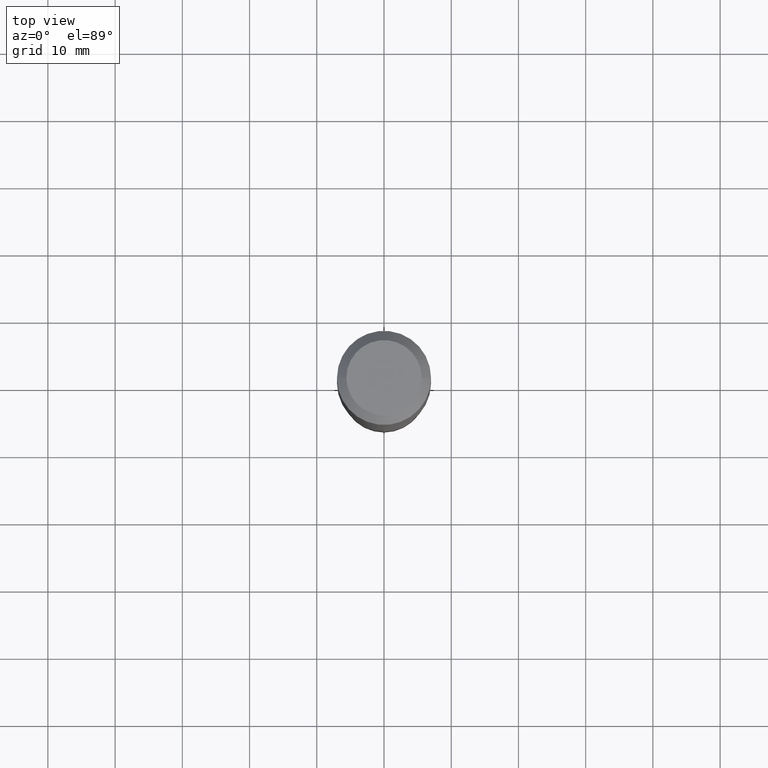
[diagram: clean part render]
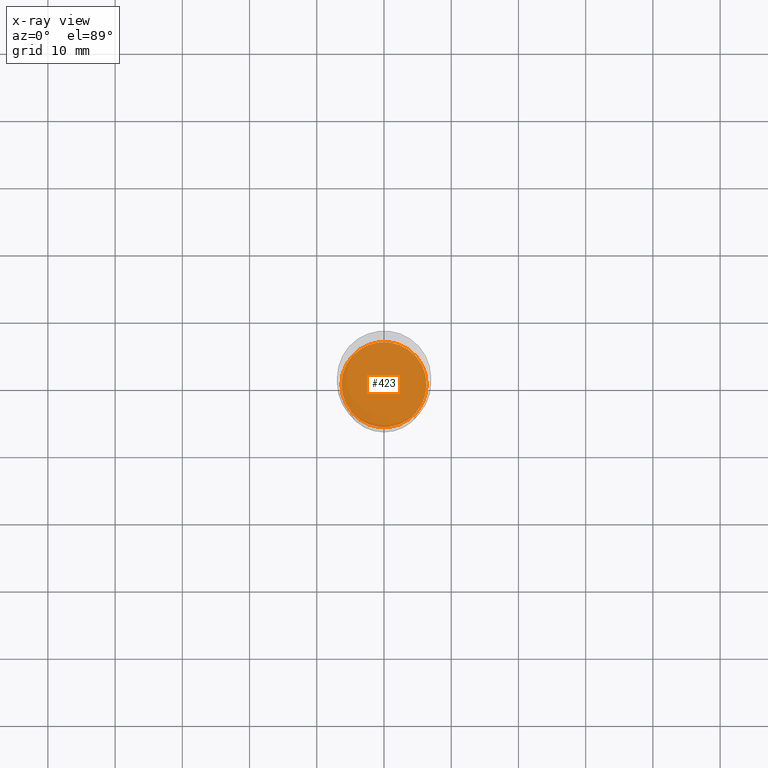
[diagram: x-ray — body ghosted, one internal face saturated and labeled with its STEP entity id]
A machine part, top view, then the same camera in x-ray: the body is ghosted and one INTERNAL B-rep face — a face not visible from any outside direction — is saturated and labeled: STEP entity #423.
In plain terms, the highlighted planar face has unit normal (-0, 0, 1).
Its self-contained STEP definition (entity closure, byte-faithful):
#9 = PLANE ( 'NONE',  #181 ) ;
#51 = EDGE_CURVE ( 'NONE', #230, #458, #137, .T. ) ;
#90 = DIRECTION ( 'NONE',  ( -2.445468806185136597E-29, 3.491481338843145583E-15, 1.000000000000000000 ) ) ;
#100 = CARTESIAN_POINT ( 'NONE',  ( 0.2494999999999999996, -9.948626926899652657E-15, -2.350400000000000045 ) ) ;
#133 = EDGE_CURVE ( 'NONE', #458, #230, #327, .T. ) ;
#135 = DIRECTION ( 'NONE',  ( 1.000000000000000000, -6.982962677686269077E-15, 0.000000000000000000 ) ) ;
#137 = CIRCLE ( 'NONE', #180, 0.2494999999999999996 ) ;
#139 = ORIENTED_EDGE ( 'NONE', *, *, #51, .F. ) ;
#154 = FACE_OUTER_BOUND ( 'NONE', #237, .T. ) ;
#158 = CARTESIAN_POINT ( 'NONE',  ( 7.544910167511496046E-29, -5.632856486589080252E-15, -2.350400000000000045 ) ) ;
#159 = CARTESIAN_POINT ( 'NONE',  ( 5.747829882057544571E-29, -8.206377738816928987E-15, -2.350400000000000045 ) ) ;
#180 = AXIS2_PLACEMENT_3D ( 'NONE', #432, #246, #135 ) ;
#181 = AXIS2_PLACEMENT_3D ( 'NONE', #158, #308, #459 ) ;
#230 = VERTEX_POINT ( 'NONE', #441 ) ;
#237 = EDGE_LOOP ( 'NONE', ( #338, #139 ) ) ;
#246 = DIRECTION ( 'NONE',  ( -2.445468806185136597E-29, 3.491481338843145583E-15, 1.000000000000000000 ) ) ;
#308 = DIRECTION ( 'NONE',  ( -2.438088387897960049E-29, 3.491481338843145188E-15, 1.000000000000000000 ) ) ;
#327 = CIRCLE ( 'NONE', #381, 0.2494999999999999996 ) ;
#338 = ORIENTED_EDGE ( 'NONE', *, *, #133, .F. ) ;
#381 = AXIS2_PLACEMENT_3D ( 'NONE', #159, #90, #424 ) ;
#423 = ADVANCED_FACE ( 'NONE', ( #154 ), #9, .F. ) ;
#424 = DIRECTION ( 'NONE',  ( 1.000000000000000000, -6.982962677686269077E-15, 0.000000000000000000 ) ) ;
#432 = CARTESIAN_POINT ( 'NONE',  ( 5.747829882057544571E-29, -8.206377738816928987E-15, -2.350400000000000045 ) ) ;
#441 = CARTESIAN_POINT ( 'NONE',  ( -0.2494999999999999996, -6.430924385921369008E-15, -2.350400000000000045 ) ) ;
#458 = VERTEX_POINT ( 'NONE', #100 ) ;
#459 = DIRECTION ( 'NONE',  ( 1.000000000000000000, -6.982962677686265922E-15, 4.876176775795935793E-29 ) ) ;